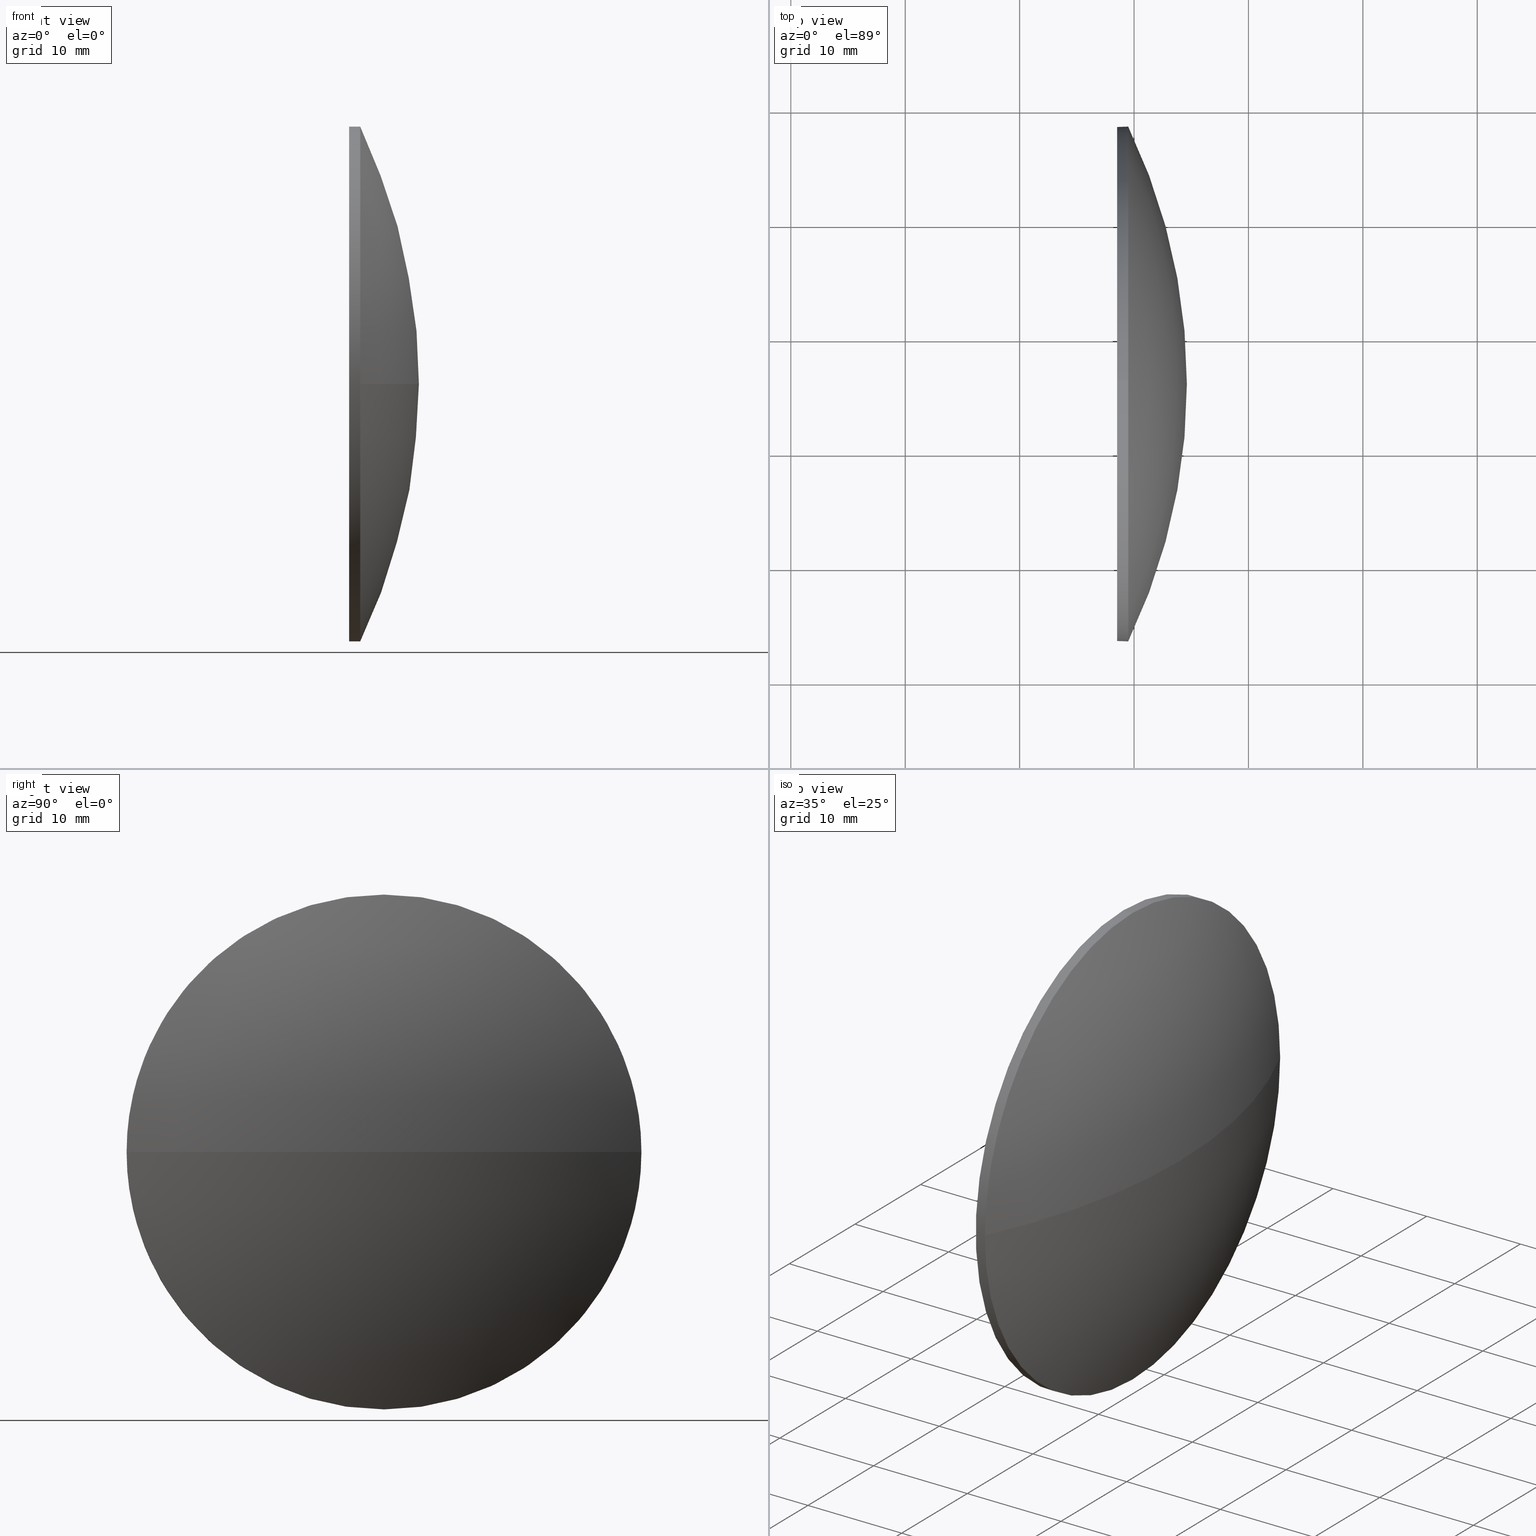
[diagram: canonical four-view strip — front | top / right | iso, engineering-drawing reading convention]
A machine part, canonical four-view strip (front | top / right | iso — engineering-drawing reading convention). The complete STEP part file that produces these views, byte-faithful:
ISO-10303-21;
HEADER;
FILE_DESCRIPTION (( 'STEP AP214' ),
    '1' );
FILE_NAME ('100150.STEP',
    '2019-05-15T09:30:18',
    ( '' ),
    ( '' ),
    'SwSTEP 2.0',
    'SolidWorks 2016',
    '' );
FILE_SCHEMA (( 'AUTOMOTIVE_DESIGN' ));
ENDSEC;

DATA;
#1 = FILL_AREA_STYLE ('',( #16 ) ) ;
#2 = CARTESIAN_POINT ( 'NONE',  ( 548.5191482803511500, 55.90797584289919100, 0.0000000000000000000 ) ) ;
#3 = LINE ( 'NONE', #85, #114 ) ;
#4 = DIRECTION ( 'NONE',  ( -1.000000000000000000, -0.0000000000000000000, -0.0000000000000000000 ) ) ;
#5 = DIRECTION ( 'NONE',  ( 0.0000000000000000000, 0.0000000000000000000, 1.000000000000000000 ) ) ;
#6 = COLOUR_RGB ( '',1.000000000000000000, 1.000000000000000000, 1.000000000000000000 ) ;
#7 = CARTESIAN_POINT ( 'NONE',  ( 548.5191482803511500, 55.90797584289919100, 22.49999999999999300 ) ) ;
#8 = PRODUCT_RELATED_PRODUCT_CATEGORY ( 'part', '', ( #136 ) ) ;
#9 = FACE_OUTER_BOUND ( 'NONE', #109, .T. ) ;
#10 = SPHERICAL_SURFACE ( 'NONE', #67, 51.90710526315791600 ) ;
#11 = PRODUCT_DEFINITION ( 'δ֪', '', #143, #44 ) ;
#12 = ORIENTED_EDGE ( 'NONE', *, *, #47, .T. ) ;
#13 = CIRCLE ( 'NONE', #134, 22.49999999999999300 ) ;
#14 = MANIFOLD_SOLID_BREP ( '��ת1', #181 ) ;
#15 = ORIENTED_EDGE ( 'NONE', *, *, #126, .F. ) ;
#16 = FILL_AREA_STYLE_COLOUR ( '', #6 ) ;
#17 = CARTESIAN_POINT ( 'NONE',  ( 543.8709406530288100, 55.90797584289919100, 22.49999999999999300 ) ) ;
#18 = ORIENTED_EDGE ( 'NONE', *, *, #124, .T. ) ;
#19 = CIRCLE ( 'NONE', #82, 51.90710526315789500 ) ;
#20 = STYLED_ITEM ( 'NONE', ( #97 ), #30 ) ;
#21 = CARTESIAN_POINT ( 'NONE',  ( 549.4891482803511700, 55.90797584289919100, 22.49999999999999300 ) ) ;
#22 = DIRECTION ( 'NONE',  ( 0.0000000000000000000, 1.000000000000000000, 0.0000000000000000000 ) ) ;
#23 = EDGE_LOOP ( 'NONE', ( #69, #163, #118, #72, #135 ) ) ;
#24 = DIRECTION ( 'NONE',  ( 1.000000000000000000, 0.0000000000000000000, 0.0000000000000000000 ) ) ;
#25 =( NAMED_UNIT ( * ) PLANE_ANGLE_UNIT ( ) SI_UNIT ( $, .RADIAN. ) );
#26 = DIRECTION ( 'NONE',  ( 1.000000000000000000, 0.0000000000000000000, 0.0000000000000000000 ) ) ;
#27 = AXIS2_PLACEMENT_3D ( 'NONE', #91, #24, #131 ) ;
#28 = VERTEX_POINT ( 'NONE', #127 ) ;
#29 = PRESENTATION_LAYER_ASSIGNMENT (  '', '', ( #98 ) ) ;
#30 = ADVANCED_BREP_SHAPE_REPRESENTATION ( '100150', ( #14, #41 ), #122 ) ;
#31 = PRODUCT_DEFINITION_SHAPE ( 'NONE', 'NONE',  #11 ) ;
#32 = ADVANCED_FACE ( 'NONE', ( #51 ), #10, .T. ) ;
#33 = DIRECTION ( 'NONE',  ( -0.0000000000000000000, 0.0000000000000000000, 1.000000000000000000 ) ) ;
#34 =( NAMED_UNIT ( * ) SI_UNIT ( $, .STERADIAN. ) SOLID_ANGLE_UNIT ( ) );
#35 = CARTESIAN_POINT ( 'NONE',  ( 554.6191482803511700, 55.90797584289915500, 0.0000000000000000000 ) ) ;
#36 = CARTESIAN_POINT ( 'NONE',  ( 548.5191482803511500, 55.90797584289919100, -22.49999999999999300 ) ) ;
#37 = DIRECTION ( 'NONE',  ( -1.000000000000000000, -0.0000000000000000000, -0.0000000000000000000 ) ) ;
#38 = APPLICATION_CONTEXT ( 'automotive_design' ) ;
#39 = CARTESIAN_POINT ( 'NONE',  ( 548.5191482803511500, 55.90797584289919100, 0.0000000000000000000 ) ) ;
#40 =( NAMED_UNIT ( * ) SI_UNIT ( $, .STERADIAN. ) SOLID_ANGLE_UNIT ( ) );
#41 = AXIS2_PLACEMENT_3D ( 'NONE', #63, #132, #26 ) ;
#42 = VERTEX_POINT ( 'NONE', #35 ) ;
#43 = ORIENTED_EDGE ( 'NONE', *, *, #83, .F. ) ;
#44 = PRODUCT_DEFINITION_CONTEXT ( 'detailed design', #160, 'design' ) ;
#45 = PRESENTATION_STYLE_ASSIGNMENT (( #155 ) ) ;
#46 = CYLINDRICAL_SURFACE ( 'NONE', #107, 22.49999999999999300 ) ;
#47 = EDGE_CURVE ( 'NONE', #42, #112, #19, .T. ) ;
#48 = SURFACE_STYLE_FILL_AREA ( #1 ) ;
#49 = DIRECTION ( 'NONE',  ( 1.000000000000000000, 0.0000000000000000000, 0.0000000000000000000 ) ) ;
#50 = CARTESIAN_POINT ( 'NONE',  ( 502.7120430171933100, 55.90797584289915500, 0.0000000000000000000 ) ) ;
#51 = FACE_OUTER_BOUND ( 'NONE', #148, .T. ) ;
#52 = DIRECTION ( 'NONE',  ( 0.0000000000000000000, 0.0000000000000000000, 1.000000000000000000 ) ) ;
#53 = DIRECTION ( 'NONE',  ( 0.0000000000000000000, 0.0000000000000000000, 1.000000000000000000 ) ) ;
#54 = DIRECTION ( 'NONE',  ( -1.000000000000000000, -0.0000000000000000000, -0.0000000000000000000 ) ) ;
#55 = PRODUCT_CONTEXT ( 'NONE', #38, 'mechanical' ) ;
#56 = CIRCLE ( 'NONE', #92, 22.49999999999999300 ) ;
#57 = EDGE_CURVE ( 'NONE', #42, #64, #154, .T. ) ;
#58 = EDGE_CURVE ( 'NONE', #28, #71, #3, .T. ) ;
#59 = COLOUR_RGB ( '',1.000000000000000000, 1.000000000000000000, 1.000000000000000000 ) ;
#60 = ORIENTED_EDGE ( 'NONE', *, *, #73, .T. ) ;
#61 = FACE_OUTER_BOUND ( 'NONE', #23, .T. ) ;
#62 = DIRECTION ( 'NONE',  ( -1.000000000000000000, -0.0000000000000000000, -0.0000000000000000000 ) ) ;
#63 = CARTESIAN_POINT ( 'NONE',  ( 0.0000000000000000000, 0.0000000000000000000, 0.0000000000000000000 ) ) ;
#64 = VERTEX_POINT ( 'NONE', #100 ) ;
#65 = CARTESIAN_POINT ( 'NONE',  ( 549.4891482803511700, 55.90797584289919100, 0.0000000000000000000 ) ) ;
#66 = CARTESIAN_POINT ( 'NONE',  ( 549.4891482803511700, 55.90797584289919100, 0.0000000000000000000 ) ) ;
#67 = AXIS2_PLACEMENT_3D ( 'NONE', #152, #113, #171 ) ;
#68 = CARTESIAN_POINT ( 'NONE',  ( 543.8709406530288100, 55.90797584289919100, 0.0000000000000000000 ) ) ;
#69 = ORIENTED_EDGE ( 'NONE', *, *, #177, .T. ) ;
#70 = ORIENTED_EDGE ( 'NONE', *, *, #80, .T. ) ;
#71 = VERTEX_POINT ( 'NONE', #36 ) ;
#72 = ORIENTED_EDGE ( 'NONE', *, *, #80, .F. ) ;
#73 = EDGE_CURVE ( 'NONE', #166, #71, #87, .T. ) ;
#74 = AXIS2_PLACEMENT_3D ( 'NONE', #2, #139, #168 ) ;
#75 = CIRCLE ( 'NONE', #104, 22.49999999999999300 ) ;
#76 = ORIENTED_EDGE ( 'NONE', *, *, #124, .F. ) ;
#77 =( LENGTH_UNIT ( ) NAMED_UNIT ( * ) SI_UNIT ( .MILLI., .METRE. ) );
#78 =( NAMED_UNIT ( * ) SI_UNIT ( $, .STERADIAN. ) SOLID_ANGLE_UNIT ( ) );
#79 = PLANE ( 'NONE',  #27 ) ;
#80 = EDGE_CURVE ( 'NONE', #95, #166, #81, .T. ) ;
#81 = LINE ( 'NONE', #17, #125 ) ;
#82 = AXIS2_PLACEMENT_3D ( 'NONE', #50, #33, #49 ) ;
#83 = EDGE_CURVE ( 'NONE', #28, #64, #121, .T. ) ;
#84 = ADVANCED_FACE ( 'NONE', ( #61 ), #46, .T. ) ;
#85 = CARTESIAN_POINT ( 'NONE',  ( 543.8709406530288100, 55.90797584289919100, -22.49999999999999300 ) ) ;
#86 = FACE_OUTER_BOUND ( 'NONE', #117, .T. ) ;
#87 = CIRCLE ( 'NONE', #74, 22.49999999999999300 ) ;
#88 =( LENGTH_UNIT ( ) NAMED_UNIT ( * ) SI_UNIT ( .MILLI., .METRE. ) );
#89 = ORIENTED_EDGE ( 'NONE', *, *, #145, .F. ) ;
#90 = SURFACE_SIDE_STYLE ('',( #178 ) ) ;
#91 = CARTESIAN_POINT ( 'NONE',  ( 548.5191482803511500, 55.90797584289919100, 0.0000000000000000000 ) ) ;
#92 = AXIS2_PLACEMENT_3D ( 'NONE', #66, #130, #116 ) ;
#93 = CARTESIAN_POINT ( 'NONE',  ( 502.7120430171933100, 55.90797584289915500, 0.0000000000000000000 ) ) ;
#94 = CARTESIAN_POINT ( 'NONE',  ( 549.4891482803511700, 78.40797584289916200, 0.0000000000000000000 ) ) ;
#95 = VERTEX_POINT ( 'NONE', #21 ) ;
#96 =( GEOMETRIC_REPRESENTATION_CONTEXT ( 3 ) GLOBAL_UNCERTAINTY_ASSIGNED_CONTEXT ( ( #182 ) ) GLOBAL_UNIT_ASSIGNED_CONTEXT ( ( #77, #111, #34 ) ) REPRESENTATION_CONTEXT ( 'NONE', 'WORKASPACE' ) );
#97 = PRESENTATION_STYLE_ASSIGNMENT (( #103 ) ) ;
#98 = STYLED_ITEM ( 'NONE', ( #45 ), #14 ) ;
#99 = CARTESIAN_POINT ( 'NONE',  ( 502.7120430171933100, 55.90797584289915500, 0.0000000000000000000 ) ) ;
#100 = CARTESIAN_POINT ( 'NONE',  ( 549.4891482803511700, 33.40797584289919100, -2.755455298081540000E-015 ) ) ;
#101 = AXIS2_PLACEMENT_3D ( 'NONE', #170, #156, #115 ) ;
#102 =( NAMED_UNIT ( * ) PLANE_ANGLE_UNIT ( ) SI_UNIT ( $, .RADIAN. ) );
#103 = SURFACE_STYLE_USAGE ( .BOTH. , #90 ) ;
#104 = AXIS2_PLACEMENT_3D ( 'NONE', #142, #159, #53 ) ;
#105 = SPHERICAL_SURFACE ( 'NONE', #185, 51.90710526315791600 ) ;
#106 = ORIENTED_EDGE ( 'NONE', *, *, #47, .F. ) ;
#107 = AXIS2_PLACEMENT_3D ( 'NONE', #184, #138, #186 ) ;
#108 = ADVANCED_FACE ( 'NONE', ( #161 ), #79, .F. ) ;
#109 = EDGE_LOOP ( 'NONE', ( #106, #133, #43, #180 ) ) ;
#110 = SURFACE_SIDE_STYLE ('',( #48 ) ) ;
#111 =( NAMED_UNIT ( * ) PLANE_ANGLE_UNIT ( ) SI_UNIT ( $, .RADIAN. ) );
#112 = VERTEX_POINT ( 'NONE', #94 ) ;
#113 = DIRECTION ( 'NONE',  ( -0.0000000000000000000, 0.0000000000000000000, -1.000000000000000000 ) ) ;
#114 = VECTOR ( 'NONE', #4, 1000.000000000000000 ) ;
#115 = DIRECTION ( 'NONE',  ( 0.0000000000000000000, 0.0000000000000000000, 1.000000000000000000 ) ) ;
#116 = DIRECTION ( 'NONE',  ( 0.0000000000000000000, 0.0000000000000000000, 1.000000000000000000 ) ) ;
#117 = EDGE_LOOP ( 'NONE', ( #169, #150, #18, #70, #15 ) ) ;
#118 = ORIENTED_EDGE ( 'NONE', *, *, #73, .F. ) ;
#119 = DIRECTION ( 'NONE',  ( -0.0000000000000000000, 0.0000000000000000000, -1.000000000000000000 ) ) ;
#120 = CYLINDRICAL_SURFACE ( 'NONE', #162, 22.49999999999999300 ) ;
#121 = CIRCLE ( 'NONE', #101, 22.49999999999999300 ) ;
#122 =( GEOMETRIC_REPRESENTATION_CONTEXT ( 3 ) GLOBAL_UNCERTAINTY_ASSIGNED_CONTEXT ( ( #128 ) ) GLOBAL_UNIT_ASSIGNED_CONTEXT ( ( #88, #25, #78 ) ) REPRESENTATION_CONTEXT ( 'NONE', 'WORKASPACE' ) );
#123 = ORIENTED_EDGE ( 'NONE', *, *, #57, .F. ) ;
#124 = EDGE_CURVE ( 'NONE', #64, #95, #56, .T. ) ;
#125 = VECTOR ( 'NONE', #62, 1000.000000000000000 ) ;
#126 = EDGE_CURVE ( 'NONE', #71, #166, #13, .T. ) ;
#127 = CARTESIAN_POINT ( 'NONE',  ( 549.4891482803511700, 55.90797584289919100, -22.49999999999999300 ) ) ;
#128 = UNCERTAINTY_MEASURE_WITH_UNIT (LENGTH_MEASURE( 1.000000000000000100E-005 ), #88, 'distance_accuracy_value', 'NONE');
#129 = MECHANICAL_DESIGN_GEOMETRIC_PRESENTATION_REPRESENTATION (  '', ( #98 ), #96 ) ;
#130 = DIRECTION ( 'NONE',  ( -1.000000000000000000, -0.0000000000000000000, -0.0000000000000000000 ) ) ;
#131 = DIRECTION ( 'NONE',  ( 0.0000000000000000000, 0.0000000000000000000, -1.000000000000000000 ) ) ;
#132 = DIRECTION ( 'NONE',  ( 0.0000000000000000000, 0.0000000000000000000, 1.000000000000000000 ) ) ;
#133 = ORIENTED_EDGE ( 'NONE', *, *, #57, .T. ) ;
#134 = AXIS2_PLACEMENT_3D ( 'NONE', #39, #37, #176 ) ;
#135 = ORIENTED_EDGE ( 'NONE', *, *, #145, .T. ) ;
#136 = PRODUCT ( '100150', '100150', '', ( #55 ) ) ;
#137 = ADVANCED_FACE ( 'NONE', ( #9 ), #105, .T. ) ;
#138 = DIRECTION ( 'NONE',  ( -1.000000000000000000, -0.0000000000000000000, -0.0000000000000000000 ) ) ;
#139 = DIRECTION ( 'NONE',  ( -1.000000000000000000, -0.0000000000000000000, -0.0000000000000000000 ) ) ;
#140 = DIRECTION ( 'NONE',  ( 0.0000000000000000000, 1.000000000000000000, 1.224646799147353500E-016 ) ) ;
#141 = UNCERTAINTY_MEASURE_WITH_UNIT (LENGTH_MEASURE( 1.000000000000000100E-005 ), #158, 'distance_accuracy_value', 'NONE');
#142 = CARTESIAN_POINT ( 'NONE',  ( 549.4891482803511700, 55.90797584289919100, 0.0000000000000000000 ) ) ;
#143 = PRODUCT_DEFINITION_FORMATION_WITH_SPECIFIED_SOURCE ( '�κ�', '', #136, .NOT_KNOWN. ) ;
#144 = APPLICATION_PROTOCOL_DEFINITION ( 'draft international standard', 'automotive_design', 1998, #38 ) ;
#145 = EDGE_CURVE ( 'NONE', #95, #112, #75, .T. ) ;
#146 = APPLICATION_PROTOCOL_DEFINITION ( 'draft international standard', 'automotive_design', 1998, #160 ) ;
#147 = CIRCLE ( 'NONE', #179, 22.49999999999999300 ) ;
#148 = EDGE_LOOP ( 'NONE', ( #123, #12, #89, #76 ) ) ;
#149 = PRESENTATION_LAYER_ASSIGNMENT (  '', '', ( #20 ) ) ;
#150 = ORIENTED_EDGE ( 'NONE', *, *, #83, .T. ) ;
#151 = ADVANCED_FACE ( 'NONE', ( #86 ), #120, .T. ) ;
#152 = CARTESIAN_POINT ( 'NONE',  ( 502.7120430171933100, 55.90797584289915500, 0.0000000000000000000 ) ) ;
#153 = DIRECTION ( 'NONE',  ( 0.0000000000000000000, 1.224646799147353200E-016, -1.000000000000000000 ) ) ;
#154 = CIRCLE ( 'NONE', #165, 51.90710526315790900 ) ;
#155 = SURFACE_STYLE_USAGE ( .BOTH. , #110 ) ;
#156 = DIRECTION ( 'NONE',  ( -1.000000000000000000, -0.0000000000000000000, -0.0000000000000000000 ) ) ;
#157 = FILL_AREA_STYLE_COLOUR ( '', #59 ) ;
#158 =( LENGTH_UNIT ( ) NAMED_UNIT ( * ) SI_UNIT ( .MILLI., .METRE. ) );
#159 = DIRECTION ( 'NONE',  ( -1.000000000000000000, -0.0000000000000000000, -0.0000000000000000000 ) ) ;
#160 = APPLICATION_CONTEXT ( 'automotive_design' ) ;
#161 = FACE_OUTER_BOUND ( 'NONE', #173, .T. ) ;
#162 = AXIS2_PLACEMENT_3D ( 'NONE', #68, #54, #52 ) ;
#163 = ORIENTED_EDGE ( 'NONE', *, *, #58, .T. ) ;
#164 = SHAPE_DEFINITION_REPRESENTATION ( #31, #30 ) ;
#165 = AXIS2_PLACEMENT_3D ( 'NONE', #99, #153, #140 ) ;
#166 = VERTEX_POINT ( 'NONE', #7 ) ;
#167 = MECHANICAL_DESIGN_GEOMETRIC_PRESENTATION_REPRESENTATION (  '', ( #20 ), #183 ) ;
#168 = DIRECTION ( 'NONE',  ( 0.0000000000000000000, 0.0000000000000000000, 1.000000000000000000 ) ) ;
#169 = ORIENTED_EDGE ( 'NONE', *, *, #58, .F. ) ;
#170 = CARTESIAN_POINT ( 'NONE',  ( 549.4891482803511700, 55.90797584289919100, 0.0000000000000000000 ) ) ;
#171 = DIRECTION ( 'NONE',  ( 0.0000000000000000000, 1.000000000000000000, 0.0000000000000000000 ) ) ;
#172 = DIRECTION ( 'NONE',  ( -1.000000000000000000, -0.0000000000000000000, -0.0000000000000000000 ) ) ;
#173 = EDGE_LOOP ( 'NONE', ( #60, #174 ) ) ;
#174 = ORIENTED_EDGE ( 'NONE', *, *, #126, .T. ) ;
#175 = FILL_AREA_STYLE ('',( #157 ) ) ;
#176 = DIRECTION ( 'NONE',  ( 0.0000000000000000000, 0.0000000000000000000, 1.000000000000000000 ) ) ;
#177 = EDGE_CURVE ( 'NONE', #112, #28, #147, .T. ) ;
#178 = SURFACE_STYLE_FILL_AREA ( #175 ) ;
#179 = AXIS2_PLACEMENT_3D ( 'NONE', #65, #172, #5 ) ;
#180 = ORIENTED_EDGE ( 'NONE', *, *, #177, .F. ) ;
#181 = CLOSED_SHELL ( 'NONE', ( #84, #137, #32, #151, #108 ) ) ;
#182 = UNCERTAINTY_MEASURE_WITH_UNIT (LENGTH_MEASURE( 1.000000000000000100E-005 ), #77, 'distance_accuracy_value', 'NONE');
#183 =( GEOMETRIC_REPRESENTATION_CONTEXT ( 3 ) GLOBAL_UNCERTAINTY_ASSIGNED_CONTEXT ( ( #141 ) ) GLOBAL_UNIT_ASSIGNED_CONTEXT ( ( #158, #102, #40 ) ) REPRESENTATION_CONTEXT ( 'NONE', 'WORKASPACE' ) );
#184 = CARTESIAN_POINT ( 'NONE',  ( 543.8709406530288100, 55.90797584289919100, 0.0000000000000000000 ) ) ;
#185 = AXIS2_PLACEMENT_3D ( 'NONE', #93, #119, #22 ) ;
#186 = DIRECTION ( 'NONE',  ( 0.0000000000000000000, 0.0000000000000000000, 1.000000000000000000 ) ) ;
ENDSEC;
END-ISO-10303-21;
